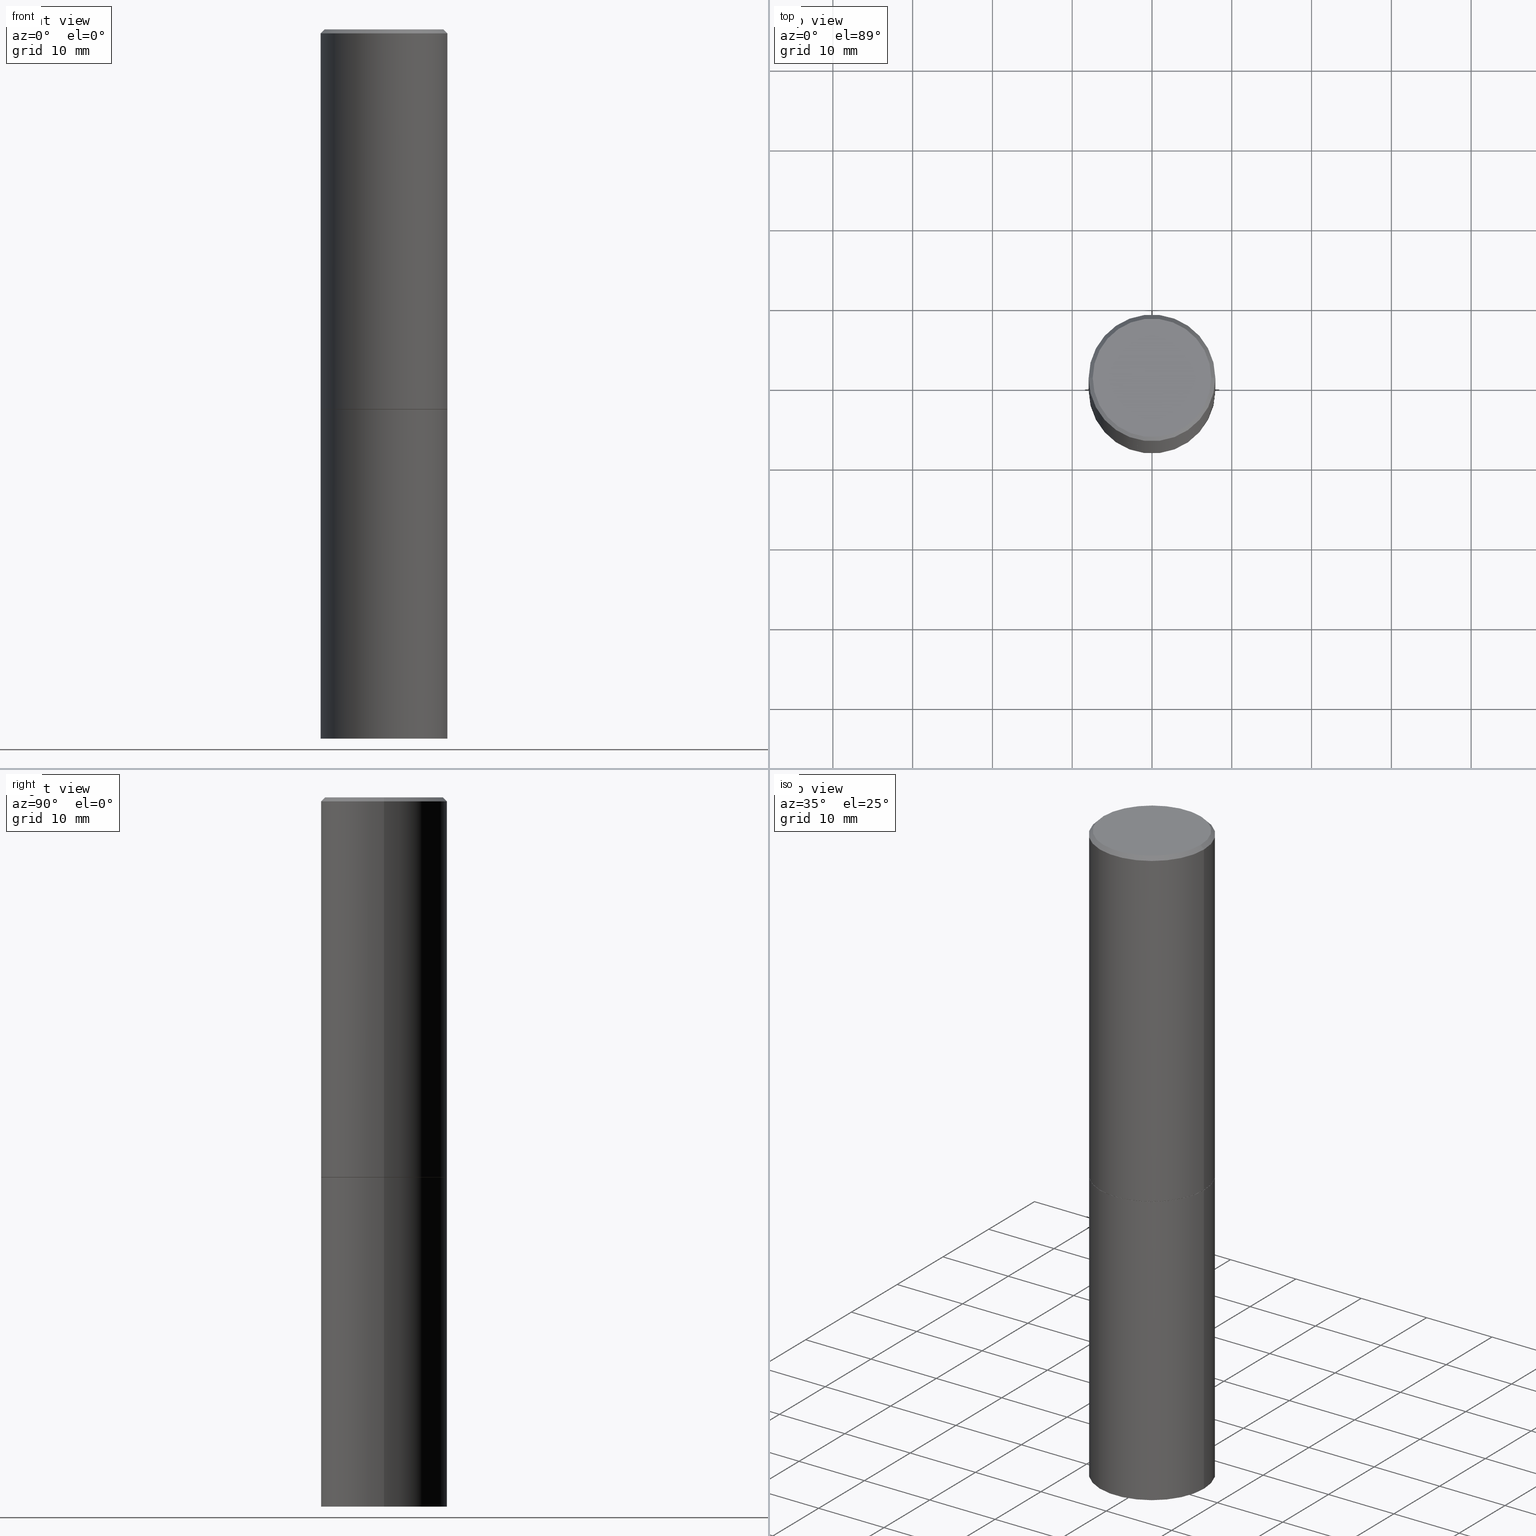
[diagram: canonical four-view strip — front | top / right | iso, engineering-drawing reading convention]
A machine part, canonical four-view strip (front | top / right | iso — engineering-drawing reading convention). The complete STEP part file that produces these views, byte-faithful:
ISO-10303-21;
HEADER;
FILE_DESCRIPTION (( 'STEP AP203' ),
    '1' );
FILE_NAME ('35103.STEP',
    '2022-07-29T11:59:55',
    ( '' ),
    ( '' ),
    'SwSTEP 2.0',
    'SolidWorks 2022',
    '' );
FILE_SCHEMA (( 'CONFIG_CONTROL_DESIGN' ));
ENDSEC;

DATA;
#1 = FACE_OUTER_BOUND ( 'NONE', #197, .T. ) ;
#2 = PERSON_AND_ORGANIZATION_ROLE ( 'design_supplier' ) ;
#3 = ORIENTED_EDGE ( 'NONE', *, *, #325, .F. ) ;
#4 = CIRCLE ( 'NONE', #59, 0.3125000000000000000 ) ;
#5 = PERSON_AND_ORGANIZATION ( #273, #289 ) ;
#6 = EDGE_LOOP ( 'NONE', ( #174, #170, #285, #106 ) ) ;
#7 = APPROVAL_DATE_TIME ( #171, #156 ) ;
#8 = APPROVAL_PERSON_ORGANIZATION ( #315, #15, #409 ) ;
#9 = ORIENTED_EDGE ( 'NONE', *, *, #37, .F. ) ;
#10 = PERSON_AND_ORGANIZATION ( #273, #289 ) ;
#11 = LINE ( 'NONE', #280, #111 ) ;
#12 = COORDINATED_UNIVERSAL_TIME_OFFSET ( 5, 0, .BEHIND. ) ;
#13 = AXIS2_PLACEMENT_3D ( 'NONE', #104, #36, #137 ) ;
#14 = CYLINDRICAL_SURFACE ( 'NONE', #175, 0.3125000000000000000 ) ;
#15 = APPROVAL ( #383, 'UNSPECIFIED' ) ;
#16 = ADVANCED_BREP_SHAPE_REPRESENTATION ( '35103', ( #77, #371, #179 ), #131 ) ;
#17 = CARTESIAN_POINT ( 'NONE',  ( -0.3114999999999999991, -4.333186888438184268E-15, -1.874999999999999556 ) ) ;
#18 = DIRECTION ( 'NONE',  ( 1.000000000000000000, -6.982962677686266711E-15, 0.000000000000000000 ) ) ;
#19 = CARTESIAN_POINT ( 'NONE',  ( -0.2925000000000000377, -1.017705870880701826E-14, -3.499825462644184704 ) ) ;
#20 = EDGE_CURVE ( 'NONE', #55, #309, #299, .T. ) ;
#21 = DIRECTION ( 'NONE',  ( -0.9999619230641714207, 6.952228252019217367E-15, -0.008726535498360353527 ) ) ;
#22 = LINE ( 'NONE', #363, #381 ) ;
#23 = VERTEX_POINT ( 'NONE', #378 ) ;
#24 = PRODUCT_DEFINITION_FORMATION_WITH_SPECIFIED_SOURCE ( 'ANY', '', #66, .NOT_KNOWN. ) ;
#25 = CARTESIAN_POINT ( 'NONE',  ( -0.2925000000000000377, -1.017705870880701826E-14, -3.499825462644184704 ) ) ;
#26 = ADVANCED_FACE ( 'NONE', ( #73 ), #224, .T. ) ;
#27 = CIRCLE ( 'NONE', #277, 0.3125000000000000000 ) ;
#28 = DIRECTION ( 'NONE',  ( 2.445468806185136597E-29, -3.491481338843145583E-15, -1.000000000000000000 ) ) ;
#29 = ORIENTED_EDGE ( 'NONE', *, *, #290, .F. ) ;
#30 = CIRCLE ( 'NONE', #335, 0.2925000000000000377 ) ;
#31 = CARTESIAN_POINT ( 'NONE',  ( 4.585254011597129998E-29, -6.546527510330896340E-15, -1.874999999999999556 ) ) ;
#32 = VERTEX_POINT ( 'NONE', #180 ) ;
#33 = DIRECTION ( 'NONE',  ( -1.000000000000000000, 6.982962677686269077E-15, 0.000000000000000000 ) ) ;
#34 = FACE_OUTER_BOUND ( 'NONE', #258, .T. ) ;
#35 = ORIENTED_EDGE ( 'NONE', *, *, #37, .T. ) ;
#36 = DIRECTION ( 'NONE',  ( 2.445468806185136597E-29, -3.491481338843145583E-15, -1.000000000000000000 ) ) ;
#37 = EDGE_CURVE ( 'NONE', #423, #382, #11, .T. ) ;
#38 = VERTEX_POINT ( 'NONE', #208 ) ;
#39 = DATE_TIME_ROLE ( 'creation_date' ) ;
#40 = ORIENTED_EDGE ( 'NONE', *, *, #330, .F. ) ;
#41 = CARTESIAN_POINT ( 'NONE',  ( 8.558713995988817956E-29, -1.221957529203025001E-14, -3.499825462644184704 ) ) ;
#42 = AXIS2_PLACEMENT_3D ( 'NONE', #31, #100, #129 ) ;
#43 = APPROVAL_DATE_TIME ( #307, #15 ) ;
#44 = APPLICATION_CONTEXT ( 'configuration controlled 3d designs of mechanical parts and assemblies' ) ;
#45 = AXIS2_PLACEMENT_3D ( 'NONE', #189, #324, #18 ) ;
#46 = CARTESIAN_POINT ( 'NONE',  ( 8.559140821647976968E-29, -1.222018468595100934E-14, -3.500000000000000000 ) ) ;
#47 = EDGE_CURVE ( 'NONE', #153, #38, #27, .T. ) ;
#48 = CARTESIAN_POINT ( 'NONE',  ( 0.2925000000000000377, -1.422627095637842375E-14, -3.499825462644184704 ) ) ;
#49 = EDGE_LOOP ( 'NONE', ( #306, #206 ) ) ;
#50 = PLANE ( 'NONE',  #426 ) ;
#51 = VERTEX_POINT ( 'NONE', #79 ) ;
#52 = DIRECTION ( 'NONE',  ( -2.445468806185136597E-29, 3.491481338843145583E-15, 1.000000000000000000 ) ) ;
#53 = CONICAL_SURFACE ( 'NONE', #308, 0.3124999999999997224, 0.7853981633974472798 ) ;
#54 = LINE ( 'NONE', #190, #143 ) ;
#55 = VERTEX_POINT ( 'NONE', #319 ) ;
#56 = LINE ( 'NONE', #84, #358 ) ;
#57 = VERTEX_POINT ( 'NONE', #217 ) ;
#58 = CARTESIAN_POINT ( 'NONE',  ( 8.558713995988817956E-29, -1.221957529203025001E-14, -3.499825462644184704 ) ) ;
#59 = AXIS2_PLACEMENT_3D ( 'NONE', #120, #186, #250 ) ;
#60 = ORIENTED_EDGE ( 'NONE', *, *, #239, .F. ) ;
#61 = DIRECTION ( 'NONE',  ( -1.000000000000000000, 6.982962677686266711E-15, 0.000000000000000000 ) ) ;
#62 = VECTOR ( 'NONE', #333, 39.37007874015748143 ) ;
#63 = FACE_OUTER_BOUND ( 'NONE', #353, .T. ) ;
#64 = CARTESIAN_POINT ( 'NONE',  ( 4.585254011597130558E-29, -6.546527510330897918E-15, -1.874999999999999778 ) ) ;
#65 = AXIS2_PLACEMENT_3D ( 'NONE', #64, #272, #242 ) ;
#66 = PRODUCT ( '35103', '35103', '', ( #72 ) ) ;
#67 = EDGE_LOOP ( 'NONE', ( #265, #70, #200, #388 ) ) ;
#68 = AXIS2_PLACEMENT_3D ( 'NONE', #123, #220, #192 ) ;
#69 = DIRECTION ( 'NONE',  ( 1.000000000000000000, -6.982962677686264344E-15, 0.000000000000000000 ) ) ;
#70 = ORIENTED_EDGE ( 'NONE', *, *, #47, .T. ) ;
#71 = ADVANCED_FACE ( 'NONE', ( #311 ), #185, .F. ) ;
#72 = MECHANICAL_CONTEXT ( 'NONE', #124, 'mechanical' ) ;
#73 = FACE_OUTER_BOUND ( 'NONE', #6, .T. ) ;
#74 = CC_DESIGN_PERSON_AND_ORGANIZATION_ASSIGNMENT ( #10, #342, ( #24 ) ) ;
#75 = COORDINATED_UNIVERSAL_TIME_OFFSET ( 5, 0, .BEHIND. ) ;
#76 = DIRECTION ( 'NONE',  ( 0.7071067811866199593, -2.468850131083015945E-15, 0.7071067811864750752 ) ) ;
#77 = MANIFOLD_SOLID_BREP ( 'Body-Move/Copy2[1]', #377 ) ;
#78 = APPROVAL_ROLE ( '' ) ;
#79 = CARTESIAN_POINT ( 'NONE',  ( 0.2924999999999997047, -2.110215457714317959E-15, 4.268512490114932791E-18 ) ) ;
#80 = EDGE_CURVE ( 'NONE', #340, #374, #112, .T. ) ;
#81 = VECTOR ( 'NONE', #264, 39.37007874015747433 ) ;
#82 = CARTESIAN_POINT ( 'NONE',  ( 2.042516583223230567E-15, 0.2924999999999997047, -1.019124035366569015E-15 ) ) ;
#83 = ADVANCED_FACE ( 'NONE', ( #213 ), #354, .T. ) ;
#84 = CARTESIAN_POINT ( 'NONE',  ( 0.3125000000000000000, -2.182175836776958347E-15, 1.523805242436230075E-29 ) ) ;
#85 = ORIENTED_EDGE ( 'NONE', *, *, #389, .F. ) ;
#86 = CARTESIAN_POINT ( 'NONE',  ( 0.000000000000000000, 0.000000000000000000, 0.000000000000000000 ) ) ;
#87 = CYLINDRICAL_SURFACE ( 'NONE', #68, 0.3124999999999998890 ) ;
#88 = CIRCLE ( 'NONE', #318, 0.3125000000000000000 ) ;
#89 = EDGE_CURVE ( 'NONE', #32, #191, #297, .T. ) ;
#90 = ORIENTED_EDGE ( 'NONE', *, *, #89, .T. ) ;
#91 = VECTOR ( 'NONE', #76, 39.37007874015748143 ) ;
#92 = DIRECTION ( 'NONE',  ( -2.445468806185136597E-29, 3.491481338843145583E-15, 1.000000000000000000 ) ) ;
#93 = APPROVAL_PERSON_ORGANIZATION ( #271, #156, #349 ) ;
#94 = FACE_OUTER_BOUND ( 'NONE', #312, .T. ) ;
#95 = ORIENTED_EDGE ( 'NONE', *, *, #411, .F. ) ;
#96 = CC_DESIGN_PERSON_AND_ORGANIZATION_ASSIGNMENT ( #249, #110, ( #66 ) ) ;
#97 = DIRECTION ( 'NONE',  ( -2.445468806185136597E-29, 3.491481338843145583E-15, 1.000000000000000000 ) ) ;
#98 = DIRECTION ( 'NONE',  ( -2.445468806185136597E-29, 3.491481338843145583E-15, 1.000000000000000000 ) ) ;
#99 = APPROVAL_PERSON_ORGANIZATION ( #107, #167, #78 ) ;
#100 = DIRECTION ( 'NONE',  ( -2.445468806185136597E-29, 3.491481338843145583E-15, 1.000000000000000000 ) ) ;
#101 = ORIENTED_EDGE ( 'NONE', *, *, #330, .T. ) ;
#102 = PRODUCT_DEFINITION_SHAPE ( 'NONE', 'NONE',  #313 ) ;
#103 = ADVANCED_FACE ( 'NONE', ( #1 ), #152, .F. ) ;
#104 = CARTESIAN_POINT ( 'NONE',  ( 8.559140821647976968E-29, -1.222018468595100934E-14, -3.500000000000000000 ) ) ;
#105 = APPROVAL_STATUS ( 'not_yet_approved' ) ;
#106 = ORIENTED_EDGE ( 'NONE', *, *, #404, .F. ) ;
#107 = PERSON_AND_ORGANIZATION ( #273, #289 ) ;
#108 = LOCAL_TIME ( 7, 59, 55.00000000000000000, #75 ) ;
#109 = EDGE_LOOP ( 'NONE', ( #95, #407 ) ) ;
#110 = PERSON_AND_ORGANIZATION_ROLE ( 'design_owner' ) ;
#111 = VECTOR ( 'NONE', #117, 39.37007874015748143 ) ;
#112 = LINE ( 'NONE', #244, #91 ) ;
#113 = AXIS2_PLACEMENT_3D ( 'NONE', #41, #150, #201 ) ;
#114 = DIRECTION ( 'NONE',  ( 1.000000000000000000, -6.982962677686269077E-15, 0.000000000000000000 ) ) ;
#115 = ORIENTED_EDGE ( 'NONE', *, *, #89, .F. ) ;
#116 =( NAMED_UNIT ( * ) SI_UNIT ( $, .STERADIAN. ) SOLID_ANGLE_UNIT ( ) );
#117 = DIRECTION ( 'NONE',  ( -2.445468806185136877E-29, 3.491481338843145188E-15, 1.000000000000000000 ) ) ;
#118 = ADVANCED_FACE ( 'NONE', ( #34 ), #14, .T. ) ;
#119 = ORIENTED_EDGE ( 'NONE', *, *, #20, .F. ) ;
#120 = CARTESIAN_POINT ( 'NONE',  ( 4.582808542790944955E-29, -6.543036028992054122E-15, -1.873999999999999666 ) ) ;
#121 = VERTEX_POINT ( 'NONE', #392 ) ;
#122 = VECTOR ( 'NONE', #356, 39.37007874015748143 ) ;
#123 = CARTESIAN_POINT ( 'NONE',  ( 0.000000000000000000, 0.000000000000000000, 0.000000000000000000 ) ) ;
#124 = APPLICATION_CONTEXT ( 'configuration controlled 3d designs of mechanical parts and assemblies' ) ;
#125 = DIRECTION ( 'NONE',  ( -2.445468806185136877E-29, 3.491481338843145188E-15, 1.000000000000000000 ) ) ;
#126 = DIRECTION ( 'NONE',  ( 1.000000000000000000, -6.982962677686265133E-15, 0.000000000000000000 ) ) ;
#127 = LINE ( 'NONE', #17, #301 ) ;
#128 = VECTOR ( 'NONE', #425, 39.37007874015748143 ) ;
#129 = DIRECTION ( 'NONE',  ( 1.000000000000000000, -6.982962677686265922E-15, 0.000000000000000000 ) ) ;
#130 = EDGE_CURVE ( 'NONE', #374, #423, #4, .T. ) ;
#131 =( GEOMETRIC_REPRESENTATION_CONTEXT ( 3 ) GLOBAL_UNCERTAINTY_ASSIGNED_CONTEXT ( ( #293 ) ) GLOBAL_UNIT_ASSIGNED_CONTEXT ( ( #433, #176, #116 ) ) REPRESENTATION_CONTEXT ( 'NONE', 'WORKASPACE' ) );
#132 = ORIENTED_EDGE ( 'NONE', *, *, #357, .T. ) ;
#133 = FACE_OUTER_BOUND ( 'NONE', #292, .T. ) ;
#134 = CARTESIAN_POINT ( 'NONE',  ( -0.3125000000000000000, -7.162910048890640155E-15, -1.874999999999999778 ) ) ;
#135 = VECTOR ( 'NONE', #198, 39.37007874015748143 ) ;
#136 = FACE_OUTER_BOUND ( 'NONE', #270, .T. ) ;
#137 = DIRECTION ( 'NONE',  ( -1.000000000000000000, 6.982962677686269077E-15, 0.000000000000000000 ) ) ;
#138 = EDGE_LOOP ( 'NONE', ( #9, #144, #384, #334 ) ) ;
#139 = CC_DESIGN_DATE_AND_TIME_ASSIGNMENT ( #412, #416, ( #295 ) ) ;
#140 = CARTESIAN_POINT ( 'NONE',  ( 4.582808542790944955E-29, -6.543036028992054122E-15, -1.873999999999999666 ) ) ;
#141 = EDGE_LOOP ( 'NONE', ( #344, #305 ) ) ;
#142 = EDGE_LOOP ( 'NONE', ( #160, #410, #226, #440 ) ) ;
#143 = VECTOR ( 'NONE', #21, 39.37007874015748143 ) ;
#144 = ORIENTED_EDGE ( 'NONE', *, *, #404, .T. ) ;
#145 = ADVANCED_FACE ( 'NONE', ( #257 ), #253, .T. ) ;
#146 = COORDINATED_UNIVERSAL_TIME_OFFSET ( 5, 0, .BEHIND. ) ;
#147 = CC_DESIGN_SECURITY_CLASSIFICATION ( #295, ( #24 ) ) ;
#148 = CARTESIAN_POINT ( 'NONE',  ( 4.585254011597129998E-29, -6.546527510330896340E-15, -1.874999999999999556 ) ) ;
#149 = EDGE_CURVE ( 'NONE', #38, #153, #88, .T. ) ;
#150 = DIRECTION ( 'NONE',  ( -2.445468806185136597E-29, 3.491481338843145583E-15, 1.000000000000000000 ) ) ;
#151 = PERSON_AND_ORGANIZATION ( #273, #289 ) ;
#152 = CONICAL_SURFACE ( 'NONE', #13, 0.3125000000000000000, 1.562069680534938554 ) ;
#153 = VERTEX_POINT ( 'NONE', #284 ) ;
#154 = CARTESIAN_POINT ( 'NONE',  ( 8.559140821647976968E-29, -1.222018468595100934E-14, -3.500000000000000000 ) ) ;
#155 = CARTESIAN_POINT ( 'NONE',  ( -0.3125000000000000000, 2.220446049250313081E-15, -1.537167215704658232E-29 ) ) ;
#156 = APPROVAL ( #105, 'UNSPECIFIED' ) ;
#157 = CARTESIAN_POINT ( 'NONE',  ( 4.890937612370288923E-31, -6.982962677686312563E-17, -0.02000000000000006287 ) ) ;
#158 = AXIS2_PLACEMENT_3D ( 'NONE', #365, #234, #202 ) ;
#159 = LINE ( 'NONE', #291, #122 ) ;
#160 = ORIENTED_EDGE ( 'NONE', *, *, #411, .T. ) ;
#161 = CARTESIAN_POINT ( 'NONE',  ( 0.000000000000000000, 0.000000000000000000, 0.000000000000000000 ) ) ;
#162 = EDGE_CURVE ( 'NONE', #51, #121, #393, .T. ) ;
#163 = LINE ( 'NONE', #25, #81 ) ;
#164 = EDGE_CURVE ( 'NONE', #230, #423, #127, .T. ) ;
#165 = DIRECTION ( 'NONE',  ( -0.7071067811865467956, 2.468850131082249172E-15, -0.7071067811865482389 ) ) ;
#166 = DIRECTION ( 'NONE',  ( -2.445468806185136597E-29, 3.491481338843145583E-15, 1.000000000000000000 ) ) ;
#167 = APPROVAL ( #241, 'UNSPECIFIED' ) ;
#168 = EDGE_CURVE ( 'NONE', #153, #309, #429, .T. ) ;
#169 = CARTESIAN_POINT ( 'NONE',  ( 0.3114999999999999991, -8.721720384430167884E-15, -1.874999999999999556 ) ) ;
#170 = ORIENTED_EDGE ( 'NONE', *, *, #173, .T. ) ;
#171 = DATE_AND_TIME ( #421, #108 ) ;
#172 = ORIENTED_EDGE ( 'NONE', *, *, #286, .F. ) ;
#173 = EDGE_CURVE ( 'NONE', #230, #340, #199, .T. ) ;
#174 = ORIENTED_EDGE ( 'NONE', *, *, #164, .F. ) ;
#175 = AXIS2_PLACEMENT_3D ( 'NONE', #161, #255, #187 ) ;
#176 =( NAMED_UNIT ( * ) PLANE_ANGLE_UNIT ( ) SI_UNIT ( $, .RADIAN. ) );
#177 = ORIENTED_EDGE ( 'NONE', *, *, #149, .F. ) ;
#178 = CARTESIAN_POINT ( 'NONE',  ( 0.000000000000000000, 0.000000000000000000, 0.000000000000000000 ) ) ;
#179 = AXIS2_PLACEMENT_3D ( 'NONE', #178, #379, #282 ) ;
#180 = CARTESIAN_POINT ( 'NONE',  ( 0.2925000000000000377, -1.422627095637842375E-14, -3.499825462644184704 ) ) ;
#181 = CALENDAR_DATE ( 2022, 29, 7 ) ;
#182 = CARTESIAN_POINT ( 'NONE',  ( 4.585254011597129998E-29, -6.546527510330896340E-15, -1.874999999999999556 ) ) ;
#183 = CIRCLE ( 'NONE', #194, 0.2924999999999997047 ) ;
#184 = EDGE_CURVE ( 'NONE', #38, #55, #56, .T. ) ;
#185 = PLANE ( 'NONE',  #360 ) ;
#186 = DIRECTION ( 'NONE',  ( -2.445468806185136597E-29, 3.491481338843145583E-15, 1.000000000000000000 ) ) ;
#187 = DIRECTION ( 'NONE',  ( 1.000000000000000000, -6.982962677686266711E-15, 4.876176775795936353E-29 ) ) ;
#188 = AXIS2_PLACEMENT_3D ( 'NONE', #323, #326, #288 ) ;
#189 = CARTESIAN_POINT ( 'NONE',  ( 4.890937612370288923E-31, -6.982962677686312563E-17, -0.02000000000000006287 ) ) ;
#190 = CARTESIAN_POINT ( 'NONE',  ( -0.3125000000000000000, -1.003800884917404942E-14, -3.500000000000000000 ) ) ;
#191 = VERTEX_POINT ( 'NONE', #19 ) ;
#192 = DIRECTION ( 'NONE',  ( 1.000000000000000000, -6.982962677686266711E-15, 4.876176775795935232E-29 ) ) ;
#193 = FACE_OUTER_BOUND ( 'NONE', #141, .T. ) ;
#194 = AXIS2_PLACEMENT_3D ( 'NONE', #219, #52, #327 ) ;
#195 = DIRECTION ( 'NONE',  ( 2.445468806185136597E-29, -3.491481338843145583E-15, -1.000000000000000000 ) ) ;
#196 = CARTESIAN_POINT ( 'NONE',  ( 2.182175836777004101E-15, 0.3124999999999934497, -1.875000000000000888 ) ) ;
#197 = EDGE_LOOP ( 'NONE', ( #303, #90, #235, #177 ) ) ;
#198 = DIRECTION ( 'NONE',  ( 0.7071067811865467956, -7.319954787623254468E-15, -0.7071067811865482389 ) ) ;
#199 = CIRCLE ( 'NONE', #256, 0.3114999999999999991 ) ;
#200 = ORIENTED_EDGE ( 'NONE', *, *, #184, .T. ) ;
#201 = DIRECTION ( 'NONE',  ( 1.000000000000000000, -6.982962677686264344E-15, 0.000000000000000000 ) ) ;
#202 = DIRECTION ( 'NONE',  ( -1.000000000000000000, 6.982962677686266711E-15, 0.000000000000000000 ) ) ;
#203 = ORIENTED_EDGE ( 'NONE', *, *, #205, .T. ) ;
#204 = LOCAL_TIME ( 7, 59, 55.00000000000000000, #146 ) ;
#205 = EDGE_CURVE ( 'NONE', #32, #38, #159, .T. ) ;
#206 = ORIENTED_EDGE ( 'NONE', *, *, #162, .T. ) ;
#207 = DATE_AND_TIME ( #279, #428 ) ;
#208 = CARTESIAN_POINT ( 'NONE',  ( 0.3125000000000000000, -1.440236052272796769E-14, -3.500000000000000000 ) ) ;
#209 = ORIENTED_EDGE ( 'NONE', *, *, #168, .T. ) ;
#210 = CALENDAR_DATE ( 2022, 29, 7 ) ;
#211 = PERSON_AND_ORGANIZATION_ROLE ( 'classification_officer' ) ;
#212 = CC_DESIGN_APPROVAL ( #167, ( #295 ) ) ;
#213 = FACE_OUTER_BOUND ( 'NONE', #142, .T. ) ;
#214 = ORIENTED_EDGE ( 'NONE', *, *, #251, .T. ) ;
#215 = ADVANCED_FACE ( 'NONE', ( #287 ), #87, .T. ) ;
#216 = COORDINATED_UNIVERSAL_TIME_OFFSET ( 5, 0, .BEHIND. ) ;
#217 = CARTESIAN_POINT ( 'NONE',  ( 8.536401521773362796E-29, -1.218009381723747733E-14, -3.489611137567848242 ) ) ;
#218 = AXIS2_PLACEMENT_3D ( 'NONE', #157, #225, #359 ) ;
#219 = CARTESIAN_POINT ( 'NONE',  ( -1.043851414335219820E-46, 1.490343170380447200E-32, 4.268512490100411279E-18 ) ) ;
#220 = DIRECTION ( 'NONE',  ( -2.445468806185136597E-29, 3.491481338843145583E-15, 1.000000000000000000 ) ) ;
#221 = LOCAL_TIME ( 7, 59, 55.00000000000000000, #12 ) ;
#222 = EDGE_CURVE ( 'NONE', #309, #55, #372, .T. ) ;
#223 = DIRECTION ( 'NONE',  ( 2.438088387897960049E-29, -3.491481338843145188E-15, -1.000000000000000000 ) ) ;
#224 = CONICAL_SURFACE ( 'NONE', #369, 0.3114999999999999991, 0.7853981633975507526 ) ;
#225 = DIRECTION ( 'NONE',  ( -2.445468806185136597E-29, 3.491481338843145583E-15, 1.000000000000000000 ) ) ;
#226 = ORIENTED_EDGE ( 'NONE', *, *, #130, .F. ) ;
#227 = DIRECTION ( 'NONE',  ( -1.000000000000000000, 6.982962677686265922E-15, -4.876176775795935793E-29 ) ) ;
#228 = ADVANCED_FACE ( 'NONE', ( #352 ), #50, .F. ) ;
#229 = DIRECTION ( 'NONE',  ( 1.000000000000000000, -6.982962677686266711E-15, 4.876176775795936353E-29 ) ) ;
#230 = VERTEX_POINT ( 'NONE', #361 ) ;
#231 = CARTESIAN_POINT ( 'NONE',  ( 8.558713995988817956E-29, -1.221957529203025001E-14, -3.499825462644184704 ) ) ;
#232 = CARTESIAN_POINT ( 'NONE',  ( 0.3125000000000000000, -8.725211865769012469E-15, -1.873999999999999666 ) ) ;
#233 = CC_DESIGN_DATE_AND_TIME_ASSIGNMENT ( #376, #39, ( #313 ) ) ;
#234 = DIRECTION ( 'NONE',  ( 2.445468806185136597E-29, -3.491481338843145583E-15, -1.000000000000000000 ) ) ;
#235 = ORIENTED_EDGE ( 'NONE', *, *, #290, .T. ) ;
#236 = LENGTH_MEASURE_WITH_UNIT ( LENGTH_MEASURE( 0.02539999999999999897 ), #406 );
#237 = CIRCLE ( 'NONE', #45, 0.3124999999999997224 ) ;
#238 = ORIENTED_EDGE ( 'NONE', *, *, #130, .T. ) ;
#239 = EDGE_CURVE ( 'NONE', #121, #51, #183, .T. ) ;
#240 = PERSON_AND_ORGANIZATION ( #273, #289 ) ;
#241 = APPROVAL_STATUS ( 'not_yet_approved' ) ;
#242 = DIRECTION ( 'NONE',  ( 1.000000000000000000, -6.982962677686265133E-15, 0.000000000000000000 ) ) ;
#243 = SHAPE_DEFINITION_REPRESENTATION ( #102, #16 ) ;
#244 = CARTESIAN_POINT ( 'NONE',  ( 0.3114999999999999991, -8.721720384430167884E-15, -1.874999999999999556 ) ) ;
#245 = CIRCLE ( 'NONE', #218, 0.3124999999999997224 ) ;
#246 = ORIENTED_EDGE ( 'NONE', *, *, #286, .T. ) ;
#247 = DIRECTION ( 'NONE',  ( -2.438088387897960049E-29, 3.491481338843145188E-15, 1.000000000000000000 ) ) ;
#248 = ORIENTED_EDGE ( 'NONE', *, *, #325, .T. ) ;
#249 = PERSON_AND_ORGANIZATION ( #273, #289 ) ;
#250 = DIRECTION ( 'NONE',  ( 1.000000000000000000, -6.982962677686265133E-15, 0.000000000000000000 ) ) ;
#251 = EDGE_CURVE ( 'NONE', #382, #23, #237, .T. ) ;
#252 = AXIS2_PLACEMENT_3D ( 'NONE', #231, #397, #438 ) ;
#253 = CYLINDRICAL_SURFACE ( 'NONE', #431, 0.3124999999999998890 ) ;
#254 = CARTESIAN_POINT ( 'NONE',  ( 4.585254011597130558E-29, -6.546527510330897918E-15, -1.874999999999999778 ) ) ;
#255 = DIRECTION ( 'NONE',  ( -2.445468806185136597E-29, 3.491481338843145583E-15, 1.000000000000000000 ) ) ;
#256 = AXIS2_PLACEMENT_3D ( 'NONE', #395, #387, #390 ) ;
#257 = FACE_OUTER_BOUND ( 'NONE', #138, .T. ) ;
#258 = EDGE_LOOP ( 'NONE', ( #267, #209, #119, #283 ) ) ;
#259 = CARTESIAN_POINT ( 'NONE',  ( -0.3125000000000000000, -1.085986778634144643E-15, -1.873999999999999666 ) ) ;
#260 = AXIS2_PLACEMENT_3D ( 'NONE', #196, #331, #329 ) ;
#261 = FACE_OUTER_BOUND ( 'NONE', #67, .T. ) ;
#262 = CC_DESIGN_PERSON_AND_ORGANIZATION_ASSIGNMENT ( #240, #211, ( #295 ) ) ;
#263 = FACE_OUTER_BOUND ( 'NONE', #432, .T. ) ;
#264 = DIRECTION ( 'NONE',  ( -0.9993908270190957621, 6.856857904024552526E-15, -0.03489949670250219738 ) ) ;
#265 = ORIENTED_EDGE ( 'NONE', *, *, #168, .F. ) ;
#266 = CIRCLE ( 'NONE', #42, 0.3114999999999999991 ) ;
#267 = ORIENTED_EDGE ( 'NONE', *, *, #149, .T. ) ;
#268 = SECURITY_CLASSIFICATION_LEVEL ( 'unclassified' ) ;
#269 = AXIS2_PLACEMENT_3D ( 'NONE', #368, #304, #336 ) ;
#270 = EDGE_LOOP ( 'NONE', ( #415, #338, #85 ) ) ;
#271 = PERSON_AND_ORGANIZATION ( #273, #289 ) ;
#272 = DIRECTION ( 'NONE',  ( -2.445468806185136597E-29, 3.491481338843145583E-15, 1.000000000000000000 ) ) ;
#273 = PERSON ( 'UNSPECIFIED', 'UNSPECIFIED', 'UNSPECIFIED', ('UNSPECIFIED'), ('UNSPECIFIED'), ('UNSPECIFIED') ) ;
#274 = APPLICATION_PROTOCOL_DEFINITION ( 'international standard', 'config_control_design', 1994, #44 ) ;
#275 = DIRECTION ( 'NONE',  ( 1.000000000000000000, -6.982962677686265922E-15, 4.876176775795935793E-29 ) ) ;
#276 = EDGE_LOOP ( 'NONE', ( #238, #35, #172, #405 ) ) ;
#277 = AXIS2_PLACEMENT_3D ( 'NONE', #46, #420, #114 ) ;
#278 = CC_DESIGN_PERSON_AND_ORGANIZATION_ASSIGNMENT ( #151, #2, ( #24 ) ) ;
#279 = CALENDAR_DATE ( 2022, 29, 7 ) ;
#280 = CARTESIAN_POINT ( 'NONE',  ( -0.3124999999999998890, 2.220446049250312292E-15, -1.537167215704657391E-29 ) ) ;
#281 = AXIS2_PLACEMENT_3D ( 'NONE', #298, #98, #229 ) ;
#282 = DIRECTION ( 'NONE',  ( 1.000000000000000000, 0.000000000000000000, 0.000000000000000000 ) ) ;
#283 = ORIENTED_EDGE ( 'NONE', *, *, #184, .F. ) ;
#284 = CARTESIAN_POINT ( 'NONE',  ( -0.3125000000000000000, -7.162910048890640155E-15, -3.500000000000000000 ) ) ;
#285 = ORIENTED_EDGE ( 'NONE', *, *, #80, .T. ) ;
#286 = EDGE_CURVE ( 'NONE', #23, #382, #245, .T. ) ;
#287 = FACE_OUTER_BOUND ( 'NONE', #276, .T. ) ;
#288 = DIRECTION ( 'NONE',  ( 1.000000000000000000, -6.982962677686266711E-15, 4.876067333457694521E-29 ) ) ;
#289 = ORGANIZATION ( 'UNSPECIFIED', 'UNSPECIFIED', '' ) ;
#290 = EDGE_CURVE ( 'NONE', #191, #153, #54, .T. ) ;
#291 = CARTESIAN_POINT ( 'NONE',  ( 0.3125000000000000000, -1.436409031025461138E-14, -3.500000000000000000 ) ) ;
#292 = EDGE_LOOP ( 'NONE', ( #375, #132, #115 ) ) ;
#293 = UNCERTAINTY_MEASURE_WITH_UNIT (LENGTH_MEASURE( 1.000000000000000082E-05 ), #433, 'distance_accuracy_value', 'NONE');
#294 = LINE ( 'NONE', #434, #135 ) ;
#295 = SECURITY_CLASSIFICATION ( '', '', #268 ) ;
#296 = CC_DESIGN_PERSON_AND_ORGANIZATION_ASSIGNMENT ( #5, #310, ( #313 ) ) ;
#297 = CIRCLE ( 'NONE', #113, 0.2925000000000000377 ) ;
#298 = CARTESIAN_POINT ( 'NONE',  ( 0.000000000000000000, 0.000000000000000000, 0.000000000000000000 ) ) ;
#299 = CIRCLE ( 'NONE', #65, 0.3125000000000000000 ) ;
#300 = EDGE_CURVE ( 'NONE', #57, #32, #351, .T. ) ;
#301 = VECTOR ( 'NONE', #424, 39.37007874015748143 ) ;
#302 = CARTESIAN_POINT ( 'NONE',  ( 4.890937612370288923E-31, -6.982962677686312563E-17, -0.02000000000000006287 ) ) ;
#303 = ORIENTED_EDGE ( 'NONE', *, *, #205, .F. ) ;
#304 = DIRECTION ( 'NONE',  ( 2.445468806185136597E-29, -3.491481338843145583E-15, -1.000000000000000000 ) ) ;
#305 = ORIENTED_EDGE ( 'NONE', *, *, #222, .T. ) ;
#306 = ORIENTED_EDGE ( 'NONE', *, *, #239, .T. ) ;
#307 = DATE_AND_TIME ( #339, #367 ) ;
#308 = AXIS2_PLACEMENT_3D ( 'NONE', #302, #195, #61 ) ;
#309 = VERTEX_POINT ( 'NONE', #134 ) ;
#310 = PERSON_AND_ORGANIZATION_ROLE ( 'creator' ) ;
#311 = FACE_OUTER_BOUND ( 'NONE', #109, .T. ) ;
#312 = EDGE_LOOP ( 'NONE', ( #400, #248, #246, #40 ) ) ;
#313 = PRODUCT_DEFINITION ( 'UNKNOWN', '', #24, #398 ) ;
#314 = CONICAL_SURFACE ( 'NONE', #158, 0.3124999999999997224, 0.7853981633974472798 ) ;
#315 = PERSON_AND_ORGANIZATION ( #273, #289 ) ;
#316 = APPLICATION_PROTOCOL_DEFINITION ( 'international standard', 'config_control_design', 1994, #124 ) ;
#317 = DIRECTION ( 'NONE',  ( -2.445468806185136597E-29, 3.491481338843145583E-15, 1.000000000000000000 ) ) ;
#318 = AXIS2_PLACEMENT_3D ( 'NONE', #154, #92, #322 ) ;
#319 = CARTESIAN_POINT ( 'NONE',  ( 0.3125000000000000000, -8.728703347107855476E-15, -1.874999999999999778 ) ) ;
#320 = CC_DESIGN_APPROVAL ( #156, ( #24 ) ) ;
#321 = ADVANCED_FACE ( 'NONE', ( #63 ), #53, .T. ) ;
#322 = DIRECTION ( 'NONE',  ( 1.000000000000000000, -6.982962677686269077E-15, 0.000000000000000000 ) ) ;
#323 = CARTESIAN_POINT ( 'NONE',  ( -1.043851414335219820E-46, 1.490343170380447200E-32, 4.268512490100411279E-18 ) ) ;
#324 = DIRECTION ( 'NONE',  ( -2.445468806185136597E-29, 3.491481338843145583E-15, 1.000000000000000000 ) ) ;
#325 = EDGE_CURVE ( 'NONE', #51, #23, #294, .T. ) ;
#326 = DIRECTION ( 'NONE',  ( -2.445468806185136597E-29, 3.491481338843145583E-15, 1.000000000000000000 ) ) ;
#327 = DIRECTION ( 'NONE',  ( 1.000000000000000000, -6.982962677686266711E-15, 4.876067333457694521E-29 ) ) ;
#328 = CONICAL_SURFACE ( 'NONE', #386, 0.3125000000000000000, 1.562069680534938554 ) ;
#329 = DIRECTION ( 'NONE',  ( -1.000000000000000000, 6.982962677686265922E-15, -4.876176775795935793E-29 ) ) ;
#330 = EDGE_CURVE ( 'NONE', #121, #382, #22, .T. ) ;
#331 = DIRECTION ( 'NONE',  ( 2.438088387897960049E-29, -3.491481338843145188E-15, -1.000000000000000000 ) ) ;
#332 = CC_DESIGN_APPROVAL ( #15, ( #313 ) ) ;
#333 = DIRECTION ( 'NONE',  ( -2.445468806185136877E-29, 3.491481338843145188E-15, 1.000000000000000000 ) ) ;
#334 = ORIENTED_EDGE ( 'NONE', *, *, #251, .F. ) ;
#335 = AXIS2_PLACEMENT_3D ( 'NONE', #58, #97, #69 ) ;
#336 = DIRECTION ( 'NONE',  ( -1.000000000000000000, 6.982962677686264344E-15, 0.000000000000000000 ) ) ;
#337 = LINE ( 'NONE', #366, #62 ) ;
#338 = ORIENTED_EDGE ( 'NONE', *, *, #300, .T. ) ;
#339 = CALENDAR_DATE ( 2022, 29, 7 ) ;
#340 = VERTEX_POINT ( 'NONE', #169 ) ;
#341 = DIMENSIONAL_EXPONENTS ( 1.000000000000000000, 0.000000000000000000, 0.000000000000000000, 0.000000000000000000, 0.000000000000000000, 0.000000000000000000, 0.000000000000000000 ) ;
#342 = PERSON_AND_ORGANIZATION_ROLE ( 'creator' ) ;
#343 = ADVANCED_FACE ( 'NONE', ( #136 ), #350, .F. ) ;
#344 = ORIENTED_EDGE ( 'NONE', *, *, #20, .T. ) ;
#345 = DIRECTION ( 'NONE',  ( 1.000000000000000000, -6.982962677686265922E-15, 0.000000000000000000 ) ) ;
#346 = APPROVAL_DATE_TIME ( #207, #167 ) ;
#347 = CIRCLE ( 'NONE', #414, 0.3125000000000000000 ) ;
#348 = AXIS2_PLACEMENT_3D ( 'NONE', #182, #317, #345 ) ;
#349 = APPROVAL_ROLE ( '' ) ;
#350 = CONICAL_SURFACE ( 'NONE', #269, 0.2925000000000000377, 1.535889741755008808 ) ;
#351 = LINE ( 'NONE', #48, #408 ) ;
#352 = FACE_OUTER_BOUND ( 'NONE', #49, .T. ) ;
#353 = EDGE_LOOP ( 'NONE', ( #3, #60, #101, #214 ) ) ;
#354 = CONICAL_SURFACE ( 'NONE', #348, 0.3114999999999999991, 0.7853981633975507526 ) ;
#355 = PRODUCT_RELATED_PRODUCT_CATEGORY ( 'detail', '', ( #66 ) ) ;
#356 = DIRECTION ( 'NONE',  ( 0.9999619230641714207, -6.890705306874794562E-15, -0.008726535498360353527 ) ) ;
#357 = EDGE_CURVE ( 'NONE', #57, #191, #163, .T. ) ;
#358 = VECTOR ( 'NONE', #125, 39.37007874015748143 ) ;
#359 = DIRECTION ( 'NONE',  ( 1.000000000000000000, -6.982962677686266711E-15, 0.000000000000000000 ) ) ;
#360 = AXIS2_PLACEMENT_3D ( 'NONE', #413, #247, #275 ) ;
#361 = CARTESIAN_POINT ( 'NONE',  ( -0.3114999999999999991, -4.327888434089962654E-15, -1.874999999999999556 ) ) ;
#362 = ADVANCED_FACE ( 'NONE', ( #133 ), #419, .F. ) ;
#363 = CARTESIAN_POINT ( 'NONE',  ( -0.3124999999999997224, 2.112346210000093471E-15, -0.02000000000000006287 ) ) ;
#364 = ADVANCED_FACE ( 'NONE', ( #263 ), #328, .F. ) ;
#365 = CARTESIAN_POINT ( 'NONE',  ( 4.890937612370288923E-31, -6.982962677686312563E-17, -0.02000000000000006287 ) ) ;
#366 = CARTESIAN_POINT ( 'NONE',  ( 0.3124999999999998890, -2.182175836776957558E-15, 1.523805242436229235E-29 ) ) ;
#367 = LOCAL_TIME ( 7, 59, 55.00000000000000000, #418 ) ;
#368 = CARTESIAN_POINT ( 'NONE',  ( 8.558713995988817956E-29, -1.221957529203025001E-14, -3.499825462644184704 ) ) ;
#369 = AXIS2_PLACEMENT_3D ( 'NONE', #148, #417, #422 ) ;
#370 = ORIENTED_EDGE ( 'NONE', *, *, #389, .T. ) ;
#371 = MANIFOLD_SOLID_BREP ( 'Body-Move/Copy2[2]', #391 ) ;
#372 = CIRCLE ( 'NONE', #436, 0.3125000000000000000 ) ;
#373 = PLANE ( 'NONE',  #260 ) ;
#374 = VERTEX_POINT ( 'NONE', #232 ) ;
#375 = ORIENTED_EDGE ( 'NONE', *, *, #300, .F. ) ;
#376 = DATE_AND_TIME ( #181, #221 ) ;
#377 = CLOSED_SHELL ( 'NONE', ( #364, #118, #343, #362, #399, #380, #103 ) ) ;
#378 = CARTESIAN_POINT ( 'NONE',  ( 0.3124999999999997224, -2.213735251080464939E-15, -0.02000000000000006287 ) ) ;
#379 = DIRECTION ( 'NONE',  ( 0.000000000000000000, 0.000000000000000000, 1.000000000000000000 ) ) ;
#380 = ADVANCED_FACE ( 'NONE', ( #261 ), #402, .T. ) ;
#381 = VECTOR ( 'NONE', #165, 39.37007874015748143 ) ;
#382 = VERTEX_POINT ( 'NONE', #401 ) ;
#383 = APPROVAL_STATUS ( 'not_yet_approved' ) ;
#384 = ORIENTED_EDGE ( 'NONE', *, *, #396, .T. ) ;
#385 = DIRECTION ( 'NONE',  ( 1.000000000000000000, -6.982962677686266711E-15, 4.876176775795935232E-29 ) ) ;
#386 = AXIS2_PLACEMENT_3D ( 'NONE', #439, #28, #33 ) ;
#387 = DIRECTION ( 'NONE',  ( -2.445468806185136597E-29, 3.491481338843145583E-15, 1.000000000000000000 ) ) ;
#388 = ORIENTED_EDGE ( 'NONE', *, *, #222, .F. ) ;
#389 = EDGE_CURVE ( 'NONE', #191, #32, #30, .T. ) ;
#390 = DIRECTION ( 'NONE',  ( 1.000000000000000000, -6.982962677686265922E-15, 0.000000000000000000 ) ) ;
#391 = CLOSED_SHELL ( 'NONE', ( #83, #215, #437, #321, #145, #26, #71, #228 ) ) ;
#392 = CARTESIAN_POINT ( 'NONE',  ( -0.2924999999999997047, 2.077431396611662216E-15, 4.268512490086005323E-18 ) ) ;
#393 = CIRCLE ( 'NONE', #188, 0.2924999999999997047 ) ;
#394 = ORIENTED_EDGE ( 'NONE', *, *, #47, .F. ) ;
#395 = CARTESIAN_POINT ( 'NONE',  ( 4.585254011597129998E-29, -6.546527510330896340E-15, -1.874999999999999556 ) ) ;
#396 = EDGE_CURVE ( 'NONE', #374, #23, #337, .T. ) ;
#397 = DIRECTION ( 'NONE',  ( 2.445468806185136597E-29, -3.491481338843145583E-15, -1.000000000000000000 ) ) ;
#398 = DESIGN_CONTEXT ( 'detailed design', #44, 'design' ) ;
#399 = ADVANCED_FACE ( 'NONE', ( #193 ), #373, .F. ) ;
#400 = ORIENTED_EDGE ( 'NONE', *, *, #162, .F. ) ;
#401 = CARTESIAN_POINT ( 'NONE',  ( -0.3124999999999997224, 2.112346210000093471E-15, -0.02000000000000006287 ) ) ;
#402 = CYLINDRICAL_SURFACE ( 'NONE', #281, 0.3125000000000000000 ) ;
#403 = DIRECTION ( 'NONE',  ( 1.000000000000000000, -6.982962677686265133E-15, 0.000000000000000000 ) ) ;
#404 = EDGE_CURVE ( 'NONE', #423, #374, #347, .T. ) ;
#405 = ORIENTED_EDGE ( 'NONE', *, *, #396, .F. ) ;
#406 =( LENGTH_UNIT ( ) NAMED_UNIT ( * ) SI_UNIT ( $, .METRE. ) );
#407 = ORIENTED_EDGE ( 'NONE', *, *, #173, .F. ) ;
#408 = VECTOR ( 'NONE', #435, 39.37007874015747433 ) ;
#409 = APPROVAL_ROLE ( '' ) ;
#410 = ORIENTED_EDGE ( 'NONE', *, *, #164, .T. ) ;
#411 = EDGE_CURVE ( 'NONE', #340, #230, #266, .T. ) ;
#412 = DATE_AND_TIME ( #210, #204 ) ;
#413 = CARTESIAN_POINT ( 'NONE',  ( 4.585254011597129998E-29, -6.546527510330896340E-15, -1.874999999999999556 ) ) ;
#414 = AXIS2_PLACEMENT_3D ( 'NONE', #140, #166, #403 ) ;
#415 = ORIENTED_EDGE ( 'NONE', *, *, #357, .F. ) ;
#416 = DATE_TIME_ROLE ( 'classification_date' ) ;
#417 = DIRECTION ( 'NONE',  ( -2.445468806185136597E-29, 3.491481338843145583E-15, 1.000000000000000000 ) ) ;
#418 = COORDINATED_UNIVERSAL_TIME_OFFSET ( 5, 0, .BEHIND. ) ;
#419 = CONICAL_SURFACE ( 'NONE', #252, 0.2925000000000000377, 1.535889741755008808 ) ;
#420 = DIRECTION ( 'NONE',  ( -2.445468806185136597E-29, 3.491481338843145583E-15, 1.000000000000000000 ) ) ;
#421 = CALENDAR_DATE ( 2022, 29, 7 ) ;
#422 = DIRECTION ( 'NONE',  ( 1.000000000000000000, -6.982962677686265922E-15, 0.000000000000000000 ) ) ;
#423 = VERTEX_POINT ( 'NONE', #259 ) ;
#424 = DIRECTION ( 'NONE',  ( -0.7071067811866199593, 7.493145998870616062E-15, 0.7071067811864750752 ) ) ;
#425 = DIRECTION ( 'NONE',  ( -2.445468806185136877E-29, 3.491481338843145188E-15, 1.000000000000000000 ) ) ;
#426 = AXIS2_PLACEMENT_3D ( 'NONE', #82, #223, #227 ) ;
#427 = DIRECTION ( 'NONE',  ( -2.445468806185136597E-29, 3.491481338843145583E-15, 1.000000000000000000 ) ) ;
#428 = LOCAL_TIME ( 7, 59, 55.00000000000000000, #216 ) ;
#429 = LINE ( 'NONE', #155, #128 ) ;
#430 = DIRECTION ( 'NONE',  ( -2.445468806185136597E-29, 3.491481338843145583E-15, 1.000000000000000000 ) ) ;
#431 = AXIS2_PLACEMENT_3D ( 'NONE', #86, #427, #385 ) ;
#432 = EDGE_LOOP ( 'NONE', ( #370, #203, #394, #29 ) ) ;
#433 =( CONVERSION_BASED_UNIT ( 'INCH', #236 ) LENGTH_UNIT ( ) NAMED_UNIT ( #341 ) );
#434 = CARTESIAN_POINT ( 'NONE',  ( 0.3124999999999997224, -2.213735251080464939E-15, -0.02000000000000006287 ) ) ;
#435 = DIRECTION ( 'NONE',  ( 0.9993908270190957621, -6.978169709227547010E-15, -0.03489949670250219738 ) ) ;
#436 = AXIS2_PLACEMENT_3D ( 'NONE', #254, #430, #126 ) ;
#437 = ADVANCED_FACE ( 'NONE', ( #94 ), #314, .T. ) ;
#438 = DIRECTION ( 'NONE',  ( -1.000000000000000000, 6.982962677686264344E-15, 0.000000000000000000 ) ) ;
#439 = CARTESIAN_POINT ( 'NONE',  ( 8.559140821647976968E-29, -1.222018468595100934E-14, -3.500000000000000000 ) ) ;
#440 = ORIENTED_EDGE ( 'NONE', *, *, #80, .F. ) ;
ENDSEC;
END-ISO-10303-21;
